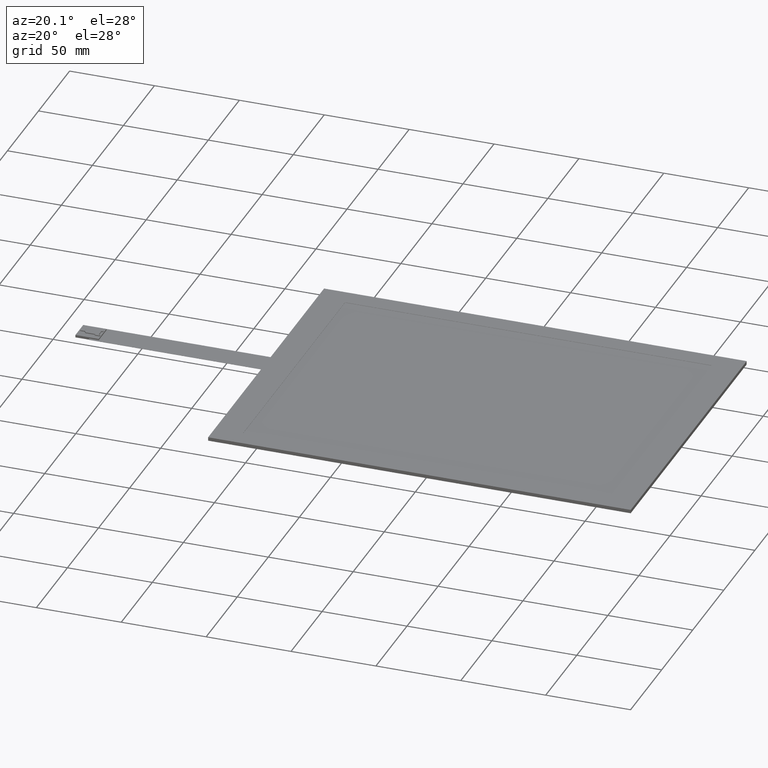
[diagram: clean part render]
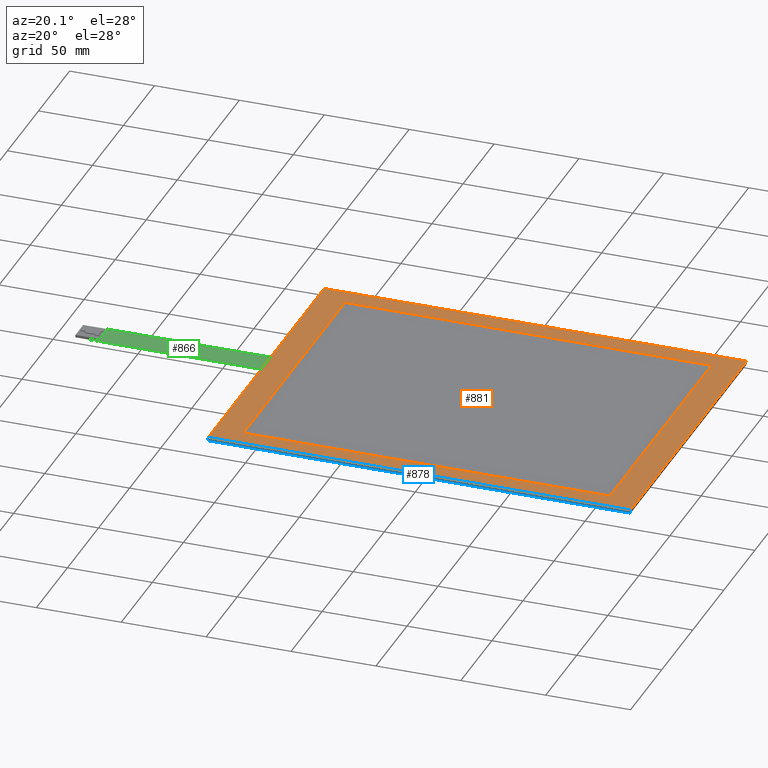
[diagram: same view with three faces highlighted in distinct colors, each labeled with its STEP entity id]
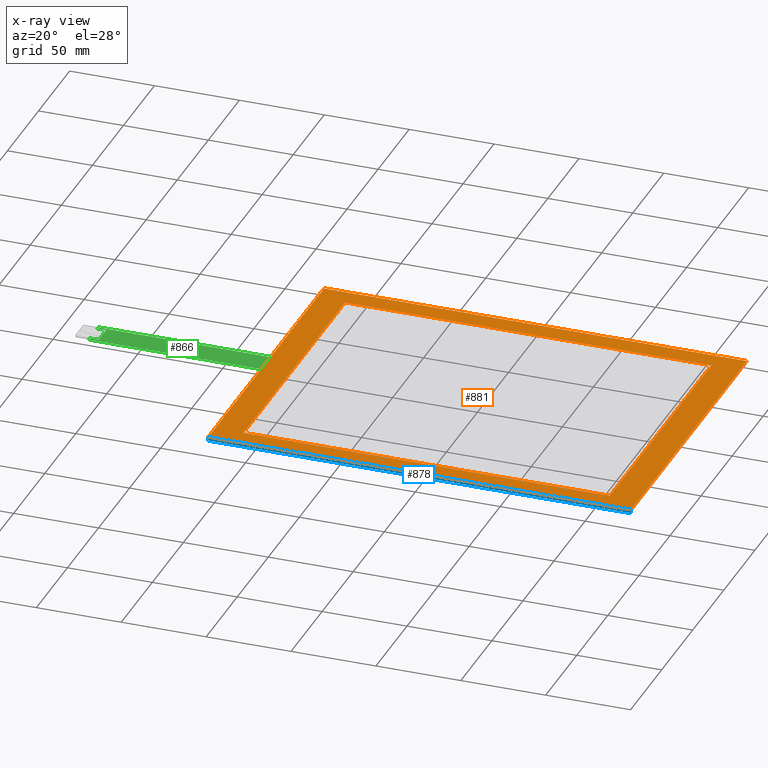
[diagram: x-ray of the same camera — body ghosted, the three highlighted faces saturated]
A machine part, auxiliary view with three faces highlighted in distinct colors.
The next image is the same camera in x-ray (body ghosted, the three faces saturated) — at least one of them is partly hidden behind the body in this view.
Their STEP definitions:

[orange] entity #881 — the highlighted planar face has unit normal (0, 0, 1).
#61=FACE_BOUND('',#149,.T.);
#103=FACE_OUTER_BOUND('',#148,.T.);
#148=EDGE_LOOP('',(#785,#786,#787,#788));
#149=EDGE_LOOP('',(#789,#790,#791,#792));
#241=LINE('',#1334,#355);
#245=LINE('',#1342,#359);
#248=LINE('',#1348,#362);
#251=LINE('',#1353,#365);
#253=LINE('',#1359,#367);
#257=LINE('',#1367,#371);
#260=LINE('',#1373,#374);
#263=LINE('',#1378,#377);
#355=VECTOR('',#1104,10.);
#359=VECTOR('',#1110,10.);
#362=VECTOR('',#1115,10.);
#365=VECTOR('',#1120,10.);
#367=VECTOR('',#1126,10.);
#371=VECTOR('',#1132,10.);
#374=VECTOR('',#1137,10.);
#377=VECTOR('',#1142,10.);
#439=VERTEX_POINT('',#1332);
#440=VERTEX_POINT('',#1333);
#443=VERTEX_POINT('',#1341);
#445=VERTEX_POINT('',#1347);
#447=VERTEX_POINT('',#1357);
#448=VERTEX_POINT('',#1358);
#451=VERTEX_POINT('',#1366);
#453=VERTEX_POINT('',#1372);
#545=EDGE_CURVE('',#439,#440,#241,.T.);
#549=EDGE_CURVE('',#443,#439,#245,.T.);
#552=EDGE_CURVE('',#445,#443,#248,.T.);
#555=EDGE_CURVE('',#440,#445,#251,.T.);
#557=EDGE_CURVE('',#447,#448,#253,.T.);
#561=EDGE_CURVE('',#448,#451,#257,.T.);
#564=EDGE_CURVE('',#451,#453,#260,.T.);
#567=EDGE_CURVE('',#453,#447,#263,.T.);
#785=ORIENTED_EDGE('',*,*,#567,.T.);
#786=ORIENTED_EDGE('',*,*,#557,.T.);
#787=ORIENTED_EDGE('',*,*,#561,.T.);
#788=ORIENTED_EDGE('',*,*,#564,.T.);
#789=ORIENTED_EDGE('',*,*,#545,.T.);
#790=ORIENTED_EDGE('',*,*,#555,.T.);
#791=ORIENTED_EDGE('',*,*,#552,.T.);
#792=ORIENTED_EDGE('',*,*,#549,.T.);
#838=PLANE('',#944);
#881=ADVANCED_FACE('',(#103,#61),#838,.T.);
#944=AXIS2_PLACEMENT_3D('',#1380,#1144,#1145);
#1104=DIRECTION('',(0.,1.,0.));
#1110=DIRECTION('',(-1.,0.,0.));
#1115=DIRECTION('',(0.,-1.,0.));
#1120=DIRECTION('',(1.,0.,0.));
#1126=DIRECTION('',(1.90300159558653E-16,-1.,0.));
#1132=DIRECTION('',(1.,2.14087679503485E-16,0.));
#1137=DIRECTION('',(-9.51500797793267E-17,1.,0.));
#1142=DIRECTION('',(-1.,-7.1362559834495E-17,0.));
#1144=DIRECTION('center_axis',(0.,0.,1.));
#1145=DIRECTION('ref_axis',(1.,0.,0.));
#1332=CARTESIAN_POINT('',(-107.95,-81.915,0.));
#1333=CARTESIAN_POINT('',(-107.95,81.915,0.));
#1334=CARTESIAN_POINT('',(-107.95,-40.9575,0.));
#1341=CARTESIAN_POINT('',(107.95,-81.915,0.));
#1342=CARTESIAN_POINT('',(53.975,-81.915,0.));
#1347=CARTESIAN_POINT('',(107.95,81.915,0.));
#1348=CARTESIAN_POINT('',(107.95,40.9575,0.));
#1353=CARTESIAN_POINT('',(-53.975,81.915,0.));
#1357=CARTESIAN_POINT('',(-124.46,93.345,0.));
#1358=CARTESIAN_POINT('',(-124.46,-93.345,0.));
#1359=CARTESIAN_POINT('',(-124.46,93.345,0.));
#1366=CARTESIAN_POINT('',(124.46,-93.345,0.));
#1367=CARTESIAN_POINT('',(-124.46,-93.345,0.));
#1372=CARTESIAN_POINT('',(124.46,93.345,0.));
#1373=CARTESIAN_POINT('',(124.46,-93.345,0.));
#1378=CARTESIAN_POINT('',(124.46,93.345,0.));
#1380=CARTESIAN_POINT('Origin',(1.77635683940025E-14,8.88178419700125E-15,
0.));

[blue] entity #878 — the highlighted planar face has unit normal (0, -1, 0).
#100=FACE_OUTER_BOUND('',#145,.T.);
#145=EDGE_LOOP('',(#773,#774,#775,#776));
#256=LINE('',#1364,#370);
#257=LINE('',#1367,#371);
#258=LINE('',#1369,#372);
#259=LINE('',#1370,#373);
#370=VECTOR('',#1129,10.);
#371=VECTOR('',#1132,10.);
#372=VECTOR('',#1133,10.);
#373=VECTOR('',#1134,10.);
#448=VERTEX_POINT('',#1358);
#450=VERTEX_POINT('',#1362);
#451=VERTEX_POINT('',#1366);
#452=VERTEX_POINT('',#1368);
#560=EDGE_CURVE('',#448,#450,#256,.T.);
#561=EDGE_CURVE('',#448,#451,#257,.T.);
#562=EDGE_CURVE('',#452,#450,#258,.T.);
#563=EDGE_CURVE('',#451,#452,#259,.T.);
#773=ORIENTED_EDGE('',*,*,#561,.F.);
#774=ORIENTED_EDGE('',*,*,#560,.T.);
#775=ORIENTED_EDGE('',*,*,#562,.F.);
#776=ORIENTED_EDGE('',*,*,#563,.F.);
#835=PLANE('',#941);
#878=ADVANCED_FACE('',(#100),#835,.T.);
#941=AXIS2_PLACEMENT_3D('',#1365,#1130,#1131);
#1129=DIRECTION('',(0.,0.,-1.));
#1130=DIRECTION('center_axis',(2.14087679503485E-16,-1.,0.));
#1131=DIRECTION('ref_axis',(-1.,-2.14087679503485E-16,0.));
#1132=DIRECTION('',(1.,2.14087679503485E-16,0.));
#1133=DIRECTION('',(-1.,-2.14087679503485E-16,0.));
#1134=DIRECTION('',(0.,0.,-1.));
#1358=CARTESIAN_POINT('',(-124.46,-93.345,0.));
#1362=CARTESIAN_POINT('',(-124.46,-93.345,-2.1));
#1364=CARTESIAN_POINT('',(-124.46,-93.345,0.));
#1365=CARTESIAN_POINT('Origin',(124.46,-93.345,0.));
#1366=CARTESIAN_POINT('',(124.46,-93.345,0.));
#1367=CARTESIAN_POINT('',(-124.46,-93.345,0.));
#1368=CARTESIAN_POINT('',(124.46,-93.345,-2.1));
#1369=CARTESIAN_POINT('',(-124.46,-93.345,-2.1));
#1370=CARTESIAN_POINT('',(124.46,-93.345,0.));

[green] entity #866 — the highlighted planar face has unit normal (0, 0, 1).
#88=FACE_OUTER_BOUND('',#132,.T.);
#132=EDGE_LOOP('',(#713,#714,#715,#716,#717,#718,#719,#720));
#205=LINE('',#1261,#319);
#215=LINE('',#1281,#329);
#225=LINE('',#1300,#339);
#227=LINE('',#1305,#341);
#228=LINE('',#1307,#342);
#229=LINE('',#1309,#343);
#230=LINE('',#1311,#344);
#231=LINE('',#1312,#345);
#319=VECTOR('',#1042,10.);
#329=VECTOR('',#1056,10.);
#339=VECTOR('',#1072,10.);
#341=VECTOR('',#1078,10.);
#342=VECTOR('',#1079,10.);
#343=VECTOR('',#1080,10.);
#344=VECTOR('',#1081,10.);
#345=VECTOR('',#1082,10.);
#415=VERTEX_POINT('',#1259);
#416=VERTEX_POINT('',#1260);
#424=VERTEX_POINT('',#1279);
#430=VERTEX_POINT('',#1299);
#431=VERTEX_POINT('',#1304);
#432=VERTEX_POINT('',#1306);
#433=VERTEX_POINT('',#1308);
#434=VERTEX_POINT('',#1310);
#509=EDGE_CURVE('',#415,#416,#205,.T.);
#519=EDGE_CURVE('',#416,#424,#215,.T.);
#529=EDGE_CURVE('',#430,#415,#225,.T.);
#531=EDGE_CURVE('',#424,#431,#227,.T.);
#532=EDGE_CURVE('',#431,#432,#228,.T.);
#533=EDGE_CURVE('',#433,#432,#229,.T.);
#534=EDGE_CURVE('',#433,#434,#230,.T.);
#535=EDGE_CURVE('',#434,#430,#231,.T.);
#713=ORIENTED_EDGE('',*,*,#529,.T.);
#714=ORIENTED_EDGE('',*,*,#509,.T.);
#715=ORIENTED_EDGE('',*,*,#519,.T.);
#716=ORIENTED_EDGE('',*,*,#531,.T.);
#717=ORIENTED_EDGE('',*,*,#532,.T.);
#718=ORIENTED_EDGE('',*,*,#533,.F.);
#719=ORIENTED_EDGE('',*,*,#534,.T.);
#720=ORIENTED_EDGE('',*,*,#535,.T.);
#823=PLANE('',#929);
#866=ADVANCED_FACE('',(#88),#823,.T.);
#929=AXIS2_PLACEMENT_3D('',#1303,#1076,#1077);
#1042=DIRECTION('',(2.83084755282908E-15,-1.,0.));
#1056=DIRECTION('',(-1.,-1.6184009105323E-16,0.));
#1072=DIRECTION('',(1.,0.,0.));
#1076=DIRECTION('center_axis',(0.,0.,1.));
#1077=DIRECTION('ref_axis',(1.,0.,0.));
#1078=DIRECTION('',(0.,-1.,0.));
#1079=DIRECTION('',(1.,1.20024110770287E-16,0.));
#1080=DIRECTION('',(1.90300159558653E-16,-1.,0.));
#1081=DIRECTION('',(-1.,0.,0.));
#1082=DIRECTION('',(0.,-1.,0.));
#1259=CARTESIAN_POINT('',(-220.75,6.27,-0.2));
#1260=CARTESIAN_POINT('',(-220.75,-6.28000000000001,-0.2));
#1261=CARTESIAN_POINT('',(-220.75,-3.14250000000007,-0.2));
#1279=CARTESIAN_POINT('',(-226.21,-6.28000000000001,-0.2));
#1281=CARTESIAN_POINT('',(-204.9025,-6.28,-0.2));
#1299=CARTESIAN_POINT('',(-226.21,6.27,-0.2));
#1300=CARTESIAN_POINT('',(-198.0425,6.27,-0.2));
#1303=CARTESIAN_POINT('Origin',(-175.335,-0.00499999999999889,-0.2));
#1304=CARTESIAN_POINT('',(-226.21,-7.62500000000001,-0.2));
#1305=CARTESIAN_POINT('',(-226.21,7.61500000000001,-0.2));
#1306=CARTESIAN_POINT('',(-124.46,-7.62499999999999,-0.2));
#1307=CARTESIAN_POINT('',(-226.21,-7.62500000000001,-0.2));
#1308=CARTESIAN_POINT('',(-124.46,7.61500000000001,-0.2));
#1309=CARTESIAN_POINT('',(-124.46,-46.675,-0.2));
#1310=CARTESIAN_POINT('',(-226.21,7.61500000000001,-0.2));
#1311=CARTESIAN_POINT('',(-124.46,7.61500000000001,-0.2));
#1312=CARTESIAN_POINT('',(-226.21,7.61500000000001,-0.2));